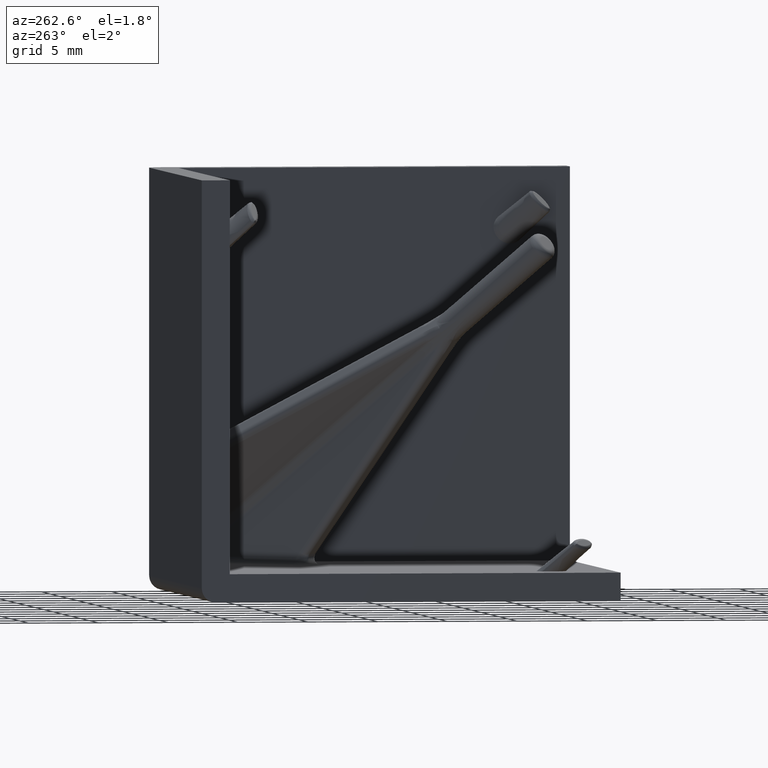
[diagram: clean part render]
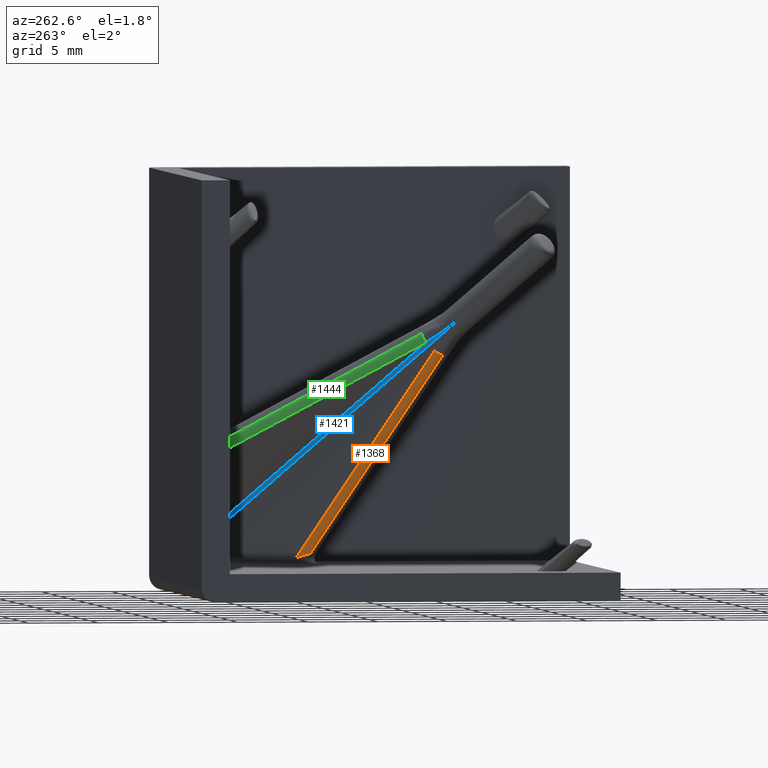
[diagram: same view with three faces highlighted in distinct colors, each labeled with its STEP entity id]
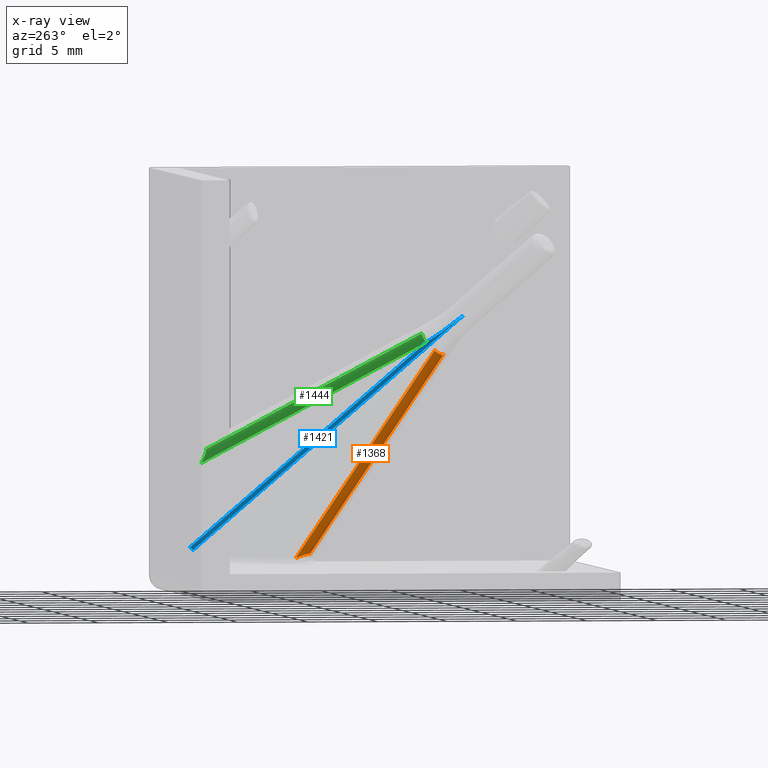
[diagram: x-ray of the same camera — body ghosted, the three highlighted faces saturated]
A machine part, auxiliary view with three faces highlighted in distinct colors.
The next image is the same camera in x-ray (body ghosted, the three faces saturated) — at least one of them is partly hidden behind the body in this view.
Their STEP definitions:

[orange] entity #1368 — the highlighted cylindrical surface (edge-blend (fillet) strip) has radius 0.5 mm, axis along (0.452, 0.452, -0.769).
#86=ELLIPSE('',#1463,0.969817154174329,0.499905993143527);
#118=CIRCLE('',#1462,0.5);
#174=CYLINDRICAL_SURFACE('',#1461,0.5);
#202=FACE_OUTER_BOUND('',#296,.T.);
#296=EDGE_LOOP('',(#947,#948,#949,#950,#951));
#398=LINE('',#2559,#470);
#399=LINE('',#2567,#471);
#470=VECTOR('',#1616,19.507408202797);
#471=VECTOR('',#1619,18.6761417617421);
#546=B_SPLINE_CURVE_WITH_KNOTS('',3,(#2561,#2562,#2563,#2564),
 .UNSPECIFIED.,.F.,.F.,(4,4),(3.79714479116341,4.71238898038466),
 .UNSPECIFIED.);
#606=VERTEX_POINT('',#2555);
#607=VERTEX_POINT('',#2556);
#608=VERTEX_POINT('',#2558);
#609=VERTEX_POINT('',#2560);
#610=VERTEX_POINT('',#2565);
#733=EDGE_CURVE('',#606,#607,#118,.T.);
#734=EDGE_CURVE('',#608,#607,#398,.T.);
#735=EDGE_CURVE('',#609,#608,#546,.T.);
#736=EDGE_CURVE('',#610,#609,#86,.T.);
#737=EDGE_CURVE('',#606,#610,#399,.T.);
#947=ORIENTED_EDGE('',*,*,#733,.T.);
#948=ORIENTED_EDGE('',*,*,#734,.F.);
#949=ORIENTED_EDGE('',*,*,#735,.F.);
#950=ORIENTED_EDGE('',*,*,#736,.F.);
#951=ORIENTED_EDGE('',*,*,#737,.F.);
#1368=ADVANCED_FACE('',(#202),#174,.T.);
#1461=AXIS2_PLACEMENT_3D('',#2554,#1612,#1613);
#1462=AXIS2_PLACEMENT_3D('',#2557,#1614,#1615);
#1463=AXIS2_PLACEMENT_3D('',#2566,#1617,#1618);
#1612=DIRECTION('center_axis',(0.452015103122612,0.452015103122602,-0.769002401230398));
#1613=DIRECTION('ref_axis',(-0.862100376113131,-1.11022302462516E-16,-0.506737546966473));
#1614=DIRECTION('center_axis',(0.452015103122612,0.452015103122603,-0.769002401230397));
#1615=DIRECTION('ref_axis',(-0.862100376113131,5.82867087928207E-16,-0.506737546966473));
#1616=DIRECTION('',(-0.452015103122612,-0.452015103122602,0.769002401230398));
#1617=DIRECTION('center_axis',(-0.232971537245391,-0.23298229404116,-0.944162863862394));
#1618=DIRECTION('ref_axis',(0.667514281719552,0.667733628871836,-0.329479110982895));
#1619=DIRECTION('',(0.452015103122612,0.452015103122602,-0.769002401230398));
#2554=CARTESIAN_POINT('Origin',(2.20616481919442,2.55971820978774,2.80135810417349));
#2555=CARTESIAN_POINT('',(10.9275989326089,11.281152323202,-12.8183791948843));
#2556=CARTESIAN_POINT('',(10.845928948345,11.9065891201246,-12.4987562502675));
#2557=CARTESIAN_POINT('Origin',(11.1994823389383,11.5530357295313,-12.4987562502675));
#2558=CARTESIAN_POINT('',(19.6635720787871,20.7242322505666,-27.5));
#2559=CARTESIAN_POINT('',(1.85261142860115,2.91327160038102,2.80135810417349));
#2560=CARTESIAN_POINT('',(19.2882179219948,20.0728215006443,-27.2466312265167));
#2561=CARTESIAN_POINT('Ctrl Pts',(19.2882179219948,20.0728215006443,-27.2466312265167));
#2562=CARTESIAN_POINT('Ctrl Pts',(19.321951028629,20.2716558898375,-27.3040205478546));
#2563=CARTESIAN_POINT('Ctrl Pts',(19.4728169672716,20.533477139051,-27.4058569526007));
#2564=CARTESIAN_POINT('Ctrl Pts',(19.6635720787871,20.7242322505666,-27.5));
#2565=CARTESIAN_POINT('',(19.3694970769752,19.7230504675682,-27.1803770553832));
#2566=CARTESIAN_POINT('Origin',(20.0168928405882,20.3706010370034,-27.499911549883));
#2567=CARTESIAN_POINT('',(1.93428141286505,2.28783480345836,2.48173515955676));

[blue] entity #1421 — the highlighted cylindrical surface (edge-blend (fillet) strip) has radius 0.5 mm, axis along (-0.5774, -0.5774, 0.5774).
#115=ELLIPSE('',#1562,2.68168083461699,0.25602834993302);
#120=CIRCLE('',#1466,0.500000000000001);
#186=CYLINDRICAL_SURFACE('',#1561,0.500000000000001);
#255=FACE_OUTER_BOUND('',#354,.T.);
#354=EDGE_LOOP('',(#1211,#1212,#1213,#1214,#1215));
#410=LINE('',#3483,#482);
#463=LINE('',#3855,#535);
#482=VECTOR('',#1696,29.8466196564259);
#535=VECTOR('',#1847,25.9829163512652);
#581=B_SPLINE_CURVE_WITH_KNOTS('',3,(#4885,#4886,#4887,#4888,#4889,#4890,
#4891,#4892,#4893,#4894,#4895,#4896,#4897),.UNSPECIFIED.,.F.,.F.,(4,3,3,
3,4),(-1.43771587351311E-5,0.00123718928494232,0.00186297250678104,0.00217911267960065,
0.00248875572861977),.UNSPECIFIED.);
#611=VERTEX_POINT('',#2569);
#613=VERTEX_POINT('',#2572);
#648=VERTEX_POINT('',#3463);
#709=VERTEX_POINT('',#3851);
#714=VERTEX_POINT('',#4884);
#739=EDGE_CURVE('',#613,#611,#120,.T.);
#783=EDGE_CURVE('',#648,#611,#410,.T.);
#873=EDGE_CURVE('',#613,#709,#463,.T.);
#896=EDGE_CURVE('',#648,#714,#581,.T.);
#897=EDGE_CURVE('',#714,#709,#115,.T.);
#1211=ORIENTED_EDGE('',*,*,#873,.F.);
#1212=ORIENTED_EDGE('',*,*,#739,.T.);
#1213=ORIENTED_EDGE('',*,*,#783,.F.);
#1214=ORIENTED_EDGE('',*,*,#896,.T.);
#1215=ORIENTED_EDGE('',*,*,#897,.T.);
#1421=ADVANCED_FACE('',(#255),#186,.F.);
#1466=AXIS2_PLACEMENT_3D('',#2573,#1624,#1625);
#1561=AXIS2_PLACEMENT_3D('',#4883,#1878,#1879);
#1562=AXIS2_PLACEMENT_3D('',#4898,#1880,#1881);
#1624=DIRECTION('center_axis',(0.577350269189624,0.577350269189624,-0.57735026918963));
#1625=DIRECTION('ref_axis',(0.707106781186551,4.16333634234434E-16,0.707106781186544));
#1696=DIRECTION('',(0.577350269189624,0.577350269189624,-0.57735026918963));
#1847=DIRECTION('',(-0.57735026918962,-0.577350269189623,0.577350269189633));
#1878=DIRECTION('center_axis',(-0.577350269189624,-0.577350269189624,0.57735026918963));
#1879=DIRECTION('ref_axis',(0.707106781186551,4.16333634234434E-16,0.707106781186544));
#1880=DIRECTION('center_axis',(-0.481298321750039,0.732600757214689,0.481298302520443));
#1881=DIRECTION('ref_axis',(-0.526907739199053,-0.680604416527883,0.509063711705011));
#2569=CARTESIAN_POINT('',(25.899441634956,27.2586027492405,-27.0969611837402));
#2572=CARTESIAN_POINT('',(25.8471726980781,27.5,-26.9078328698586));
#2573=CARTESIAN_POINT('Origin',(25.4936193074848,27.5,-27.2613862604518));
#3463=CARTESIAN_POINT('',(8.66748836848548,10.0266484834872,-9.86500703682771));
#3483=CARTESIAN_POINT('',(27.1477731123104,28.5069342265949,-28.3452926610946));
#3851=CARTESIAN_POINT('',(10.8459289483438,12.4987562502656,-11.9065891201238));
#3855=CARTESIAN_POINT('',(-0.90449582456719,0.748331477354544,-0.156164347212638));
#4883=CARTESIAN_POINT('Origin',(26.7419507848393,28.7483314773544,-28.5097177378063));
#4884=CARTESIAN_POINT('',(10.1081625257983,11.5615459965945,-11.2177954992902));
#4885=CARTESIAN_POINT('Ctrl Pts',(8.66748774192077,10.0266488562052,-9.86500729070479));
#4886=CARTESIAN_POINT('Ctrl Pts',(8.90933215661403,10.2754344487446,-10.0966611597551));
#4887=CARTESIAN_POINT('Ctrl Pts',(9.15097503537078,10.5248918828819,-10.327868599135));
#4888=CARTESIAN_POINT('Ctrl Pts',(9.39194411073312,10.7773789692905,-10.556288136089));
#4889=CARTESIAN_POINT('Ctrl Pts',(9.51242864841428,10.9036225124948,-10.670497904566));
#4890=CARTESIAN_POINT('Ctrl Pts',(9.63276593118376,11.0305609782881,-10.7840611366613));
#4891=CARTESIAN_POINT('Ctrl Pts',(9.75256463527815,11.1597976525332,-10.8955400389941));
#4892=CARTESIAN_POINT('Ctrl Pts',(9.81308588559976,11.2250868822611,-10.9518581987327));
#4893=CARTESIAN_POINT('Ctrl Pts',(9.87343577404392,11.2909207795222,-11.0076055692484));
#4894=CARTESIAN_POINT('Ctrl Pts',(9.93345940016407,11.3581622197231,-11.0621947414193));
#4895=CARTESIAN_POINT('Ctrl Pts',(9.99224945661043,11.4240217540511,-11.1156620295644));
#4896=CARTESIAN_POINT('Ctrl Pts',(10.0507842959995,11.4911661816079,-11.1680461430881));
#4897=CARTESIAN_POINT('Ctrl Pts',(10.1081625257983,11.5615459965945,-11.2177954992902));
#4898=CARTESIAN_POINT('Origin',(10.4828382008194,12.261600486614,-11.9086969093934));

[green] entity #1444 — the highlighted cylindrical surface (edge-blend (fillet) strip) has radius 0.5 mm, axis along (-0.452, -0.769, 0.452).
#163=CIRCLE('',#1585,0.5);
#193=CYLINDRICAL_SURFACE('',#1586,0.5);
#278=FACE_OUTER_BOUND('',#377,.T.);
#377=EDGE_LOOP('',(#1302,#1303,#1304,#1305));
#458=LINE('',#3845,#530);
#461=LINE('',#3853,#533);
#530=VECTOR('',#1836,18.6761417617448);
#533=VECTOR('',#1845,19.5074082027997);
#588=B_SPLINE_CURVE_WITH_KNOTS('',3,(#5366,#5367,#5368,#5369,#5370,#5371,
#5372,#5373,#5374,#5375,#5376,#5377,#5378,#5379,#5380,#5381,#5382,#5383,
#5384),.UNSPECIFIED.,.F.,.F.,(4,3,3,3,3,3,4),(4.71238898038468,5.11960249284294,
5.49781559414398,5.68534223052006,5.87601699486139,6.07356360388906,6.28318530717957),
 .UNSPECIFIED.);
#614=VERTEX_POINT('',#2576);
#708=VERTEX_POINT('',#3844);
#709=VERTEX_POINT('',#3851);
#710=VERTEX_POINT('',#3852);
#867=EDGE_CURVE('',#614,#708,#458,.T.);
#871=EDGE_CURVE('',#709,#710,#461,.T.);
#918=EDGE_CURVE('',#709,#708,#163,.T.);
#919=EDGE_CURVE('',#710,#614,#588,.T.);
#1302=ORIENTED_EDGE('',*,*,#918,.T.);
#1303=ORIENTED_EDGE('',*,*,#867,.F.);
#1304=ORIENTED_EDGE('',*,*,#919,.F.);
#1305=ORIENTED_EDGE('',*,*,#871,.F.);
#1444=ADVANCED_FACE('',(#278),#193,.T.);
#1585=AXIS2_PLACEMENT_3D('',#5364,#1926,#1927);
#1586=AXIS2_PLACEMENT_3D('',#5365,#1928,#1929);
#1836=DIRECTION('',(-0.452015103122604,-0.769002401230393,0.452015103122619));
#1845=DIRECTION('',(0.452015103122604,0.769002401230393,-0.452015103122618));
#1926=DIRECTION('center_axis',(0.452015103122596,0.769002401230397,-0.45201510312262));
#1927=DIRECTION('ref_axis',(7.77156117237609E-16,0.50673754696648,0.862100376113127));
#1928=DIRECTION('center_axis',(-0.452015103122604,-0.769002401230393,0.452015103122619));
#1929=DIRECTION('ref_axis',(0.,-0.506737546966481,-0.862100376113126));
#2576=CARTESIAN_POINT('',(19.3694970769751,27.1803770553833,-19.7230504675689));
#3844=CARTESIAN_POINT('',(10.9275989326076,12.8183791948823,-11.2811523232013));
#3845=CARTESIAN_POINT('',(10.0841272672866,11.3834011786152,-10.4376806578802));
#3851=CARTESIAN_POINT('',(10.8459289483438,12.4987562502656,-11.9065891201238));
#3852=CARTESIAN_POINT('',(19.663572078787,27.5,-20.7242322505674));
#3853=CARTESIAN_POINT('',(19.7695966544705,27.6803770553833,-20.8302568262508));
#5364=CARTESIAN_POINT('Origin',(11.1994823389369,12.4987562502656,-11.5530357295307));
#5365=CARTESIAN_POINT('Origin',(2.20616481919443,-2.80135810417352,-2.5597182097877));
#5366=CARTESIAN_POINT('Ctrl Pts',(19.663572078787,27.5,-20.7242322505674));
#5367=CARTESIAN_POINT('Ctrl Pts',(19.5844273624366,27.4609398420646,-20.6450875342169));
#5368=CARTESIAN_POINT('Ctrl Pts',(19.5064511111922,27.4183752522886,-20.5505728093555));
#5369=CARTESIAN_POINT('Ctrl Pts',(19.442648072059,27.3776855944936,-20.4494829450902));
#5370=CARTESIAN_POINT('Ctrl Pts',(19.3833888761709,27.3398937207107,-20.3555923694974));
#5371=CARTESIAN_POINT('Ctrl Pts',(19.3367063140473,27.303906821943,-20.256439735562));
#5372=CARTESIAN_POINT('Ctrl Pts',(19.3091830414226,27.2739924484406,-20.1627364320153));
#5373=CARTESIAN_POINT('Ctrl Pts',(19.295536378418,27.2591602233724,-20.116276208213));
#5374=CARTESIAN_POINT('Ctrl Pts',(19.2865038617329,27.245802310146,-20.0711764167246));
#5375=CARTESIAN_POINT('Ctrl Pts',(19.2822184014351,27.2342432341578,-20.0286192712217));
#5376=CARTESIAN_POINT('Ctrl Pts',(19.2778609984112,27.2224901086678,-19.9853476920656));
#5377=CARTESIAN_POINT('Ctrl Pts',(19.2784109763336,27.2125992683057,-19.9447155538919));
#5378=CARTESIAN_POINT('Ctrl Pts',(19.2834958279279,27.2047069033483,-19.9076472685945));
#5379=CARTESIAN_POINT('Ctrl Pts',(19.288763935605,27.1965301006134,-19.869243056646));
#5380=CARTESIAN_POINT('Ctrl Pts',(19.2988947479208,27.1904993584344,-19.8346729484157));
#5381=CARTESIAN_POINT('Ctrl Pts',(19.3129662301175,27.186518520641,-19.8044693103527));
#5382=CARTESIAN_POINT('Ctrl Pts',(19.3278978357796,27.182294352973,-19.772419466078));
#5383=CARTESIAN_POINT('Ctrl Pts',(19.3472555234758,27.1803770553936,-19.7452920210803));
#5384=CARTESIAN_POINT('Ctrl Pts',(19.3694970769751,27.1803770553833,-19.7230504675689));